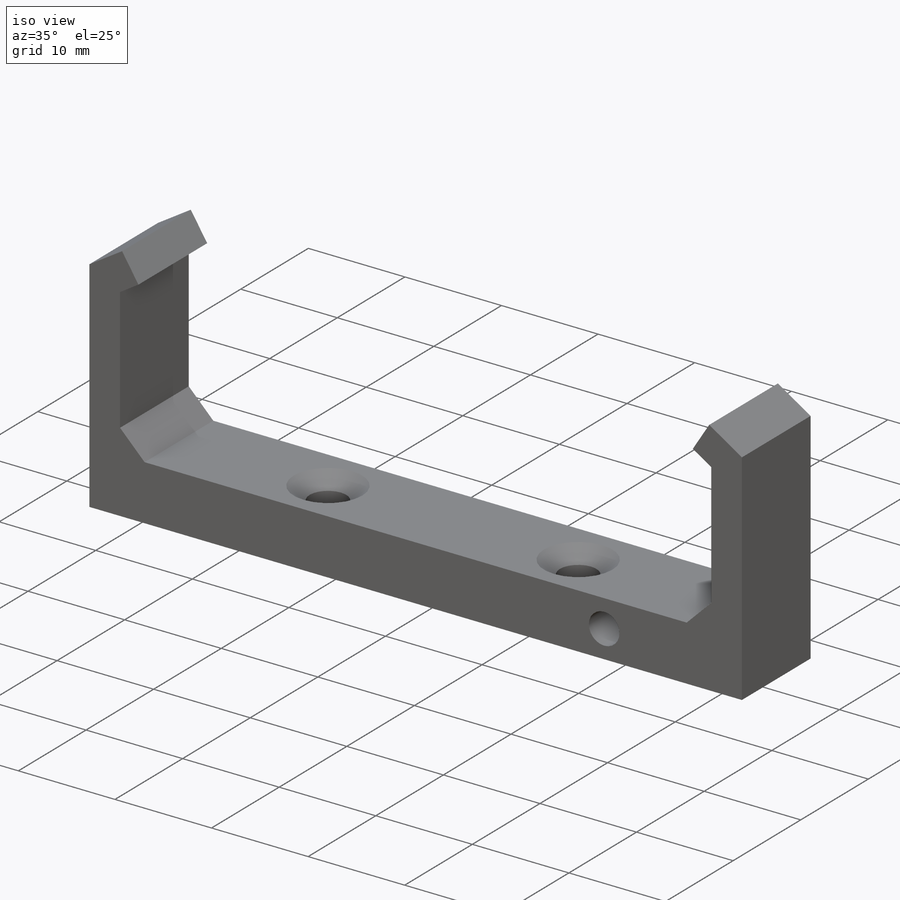
[diagram: iso view]
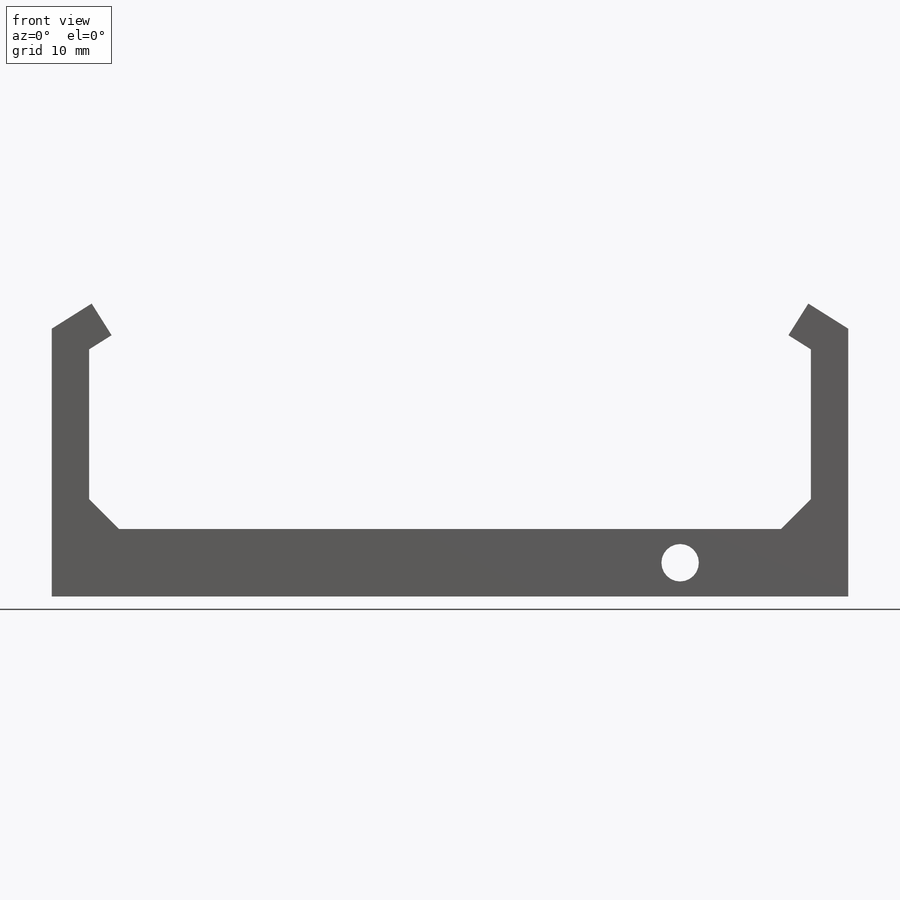
[diagram: front view]
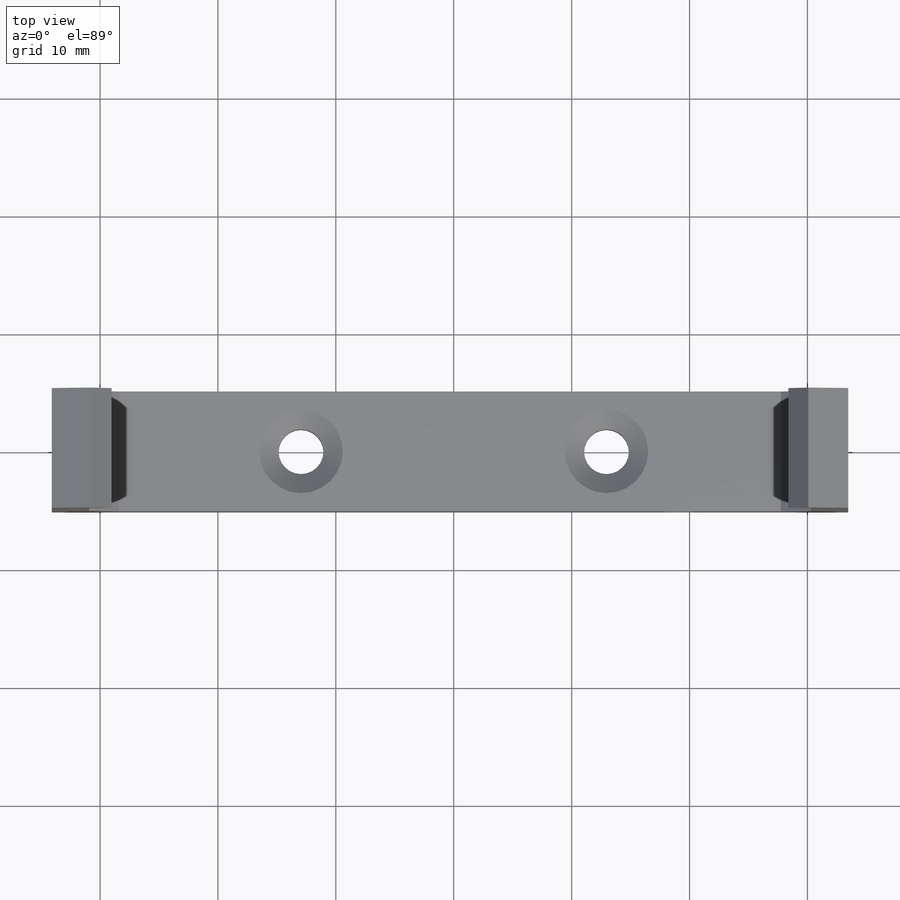
[diagram: top view]
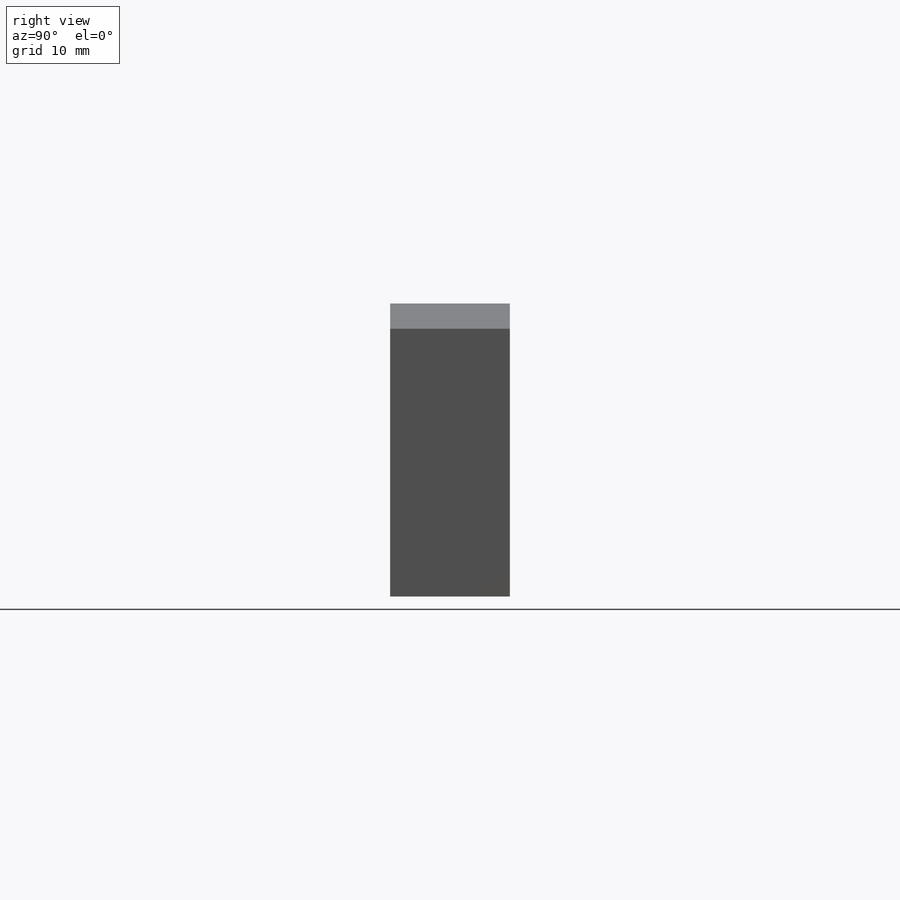
[diagram: right view]
SOLIDWORKS PART (.sldprt)
format: sldprt  version: not decoded by parser v0  size: 233,472 bytes
history: native  units: mm
features: sketch x6, extrude x2, cut_extrude x2, chamfer x2, material x1, hole x1, plane x1 (+11 scaffold rows collapsed)
feature tree (26):
  scaffold x11  (default folders/planes/origin — collapsed)
  material  "Material <not specified>"
  sketch  "Sketch1"  dims[c1.D1=58.039mm c1.D2=58.039mm c2.D2=~28.26171deg c3.D2=~14.670795mm c4.D2=~241.73829deg c5.D2=~14.670795mm c6.D2=~241.73829deg c7.D2=58.039mm c8.D2=45.0deg c8.D3=15.494mm c9.D2=58.039mm c10.D2=45.0deg c10.D3=~67.390226mm c10.D4=~30.520113mm c11.D3=~61.040226mm c11.D4=3.175mm c12.D3=~61.040226mm c12.D1=61.214mm c13.D3=58.42mm c13.D5=14.224mm c13.D6=14.224mm c14.D5=~2.251206mm c14.D6=15.24mm c14.D3=57.404mm c14.D2=3.175mm c15.D3=3.175mm]
  extrude  "Boss-Extrude1"  Depth=5.08mm
  sketch  "Sketch2"  dims[D4=~1.348642mm D1=33.782mm D2=16.891mm D3=16.891mm]
  cut_extrude  "Cut-Extrude1"  Depth=11.557mm
  chamfer  "Chamfer1"  Distance=2.54mm Angle=45deg
  chamfer  "Chamfer2"  Distance=2.54mm Angle=45deg
  hole  "CSK for #6 Flat Head Machine Screw (100)2"  Diameter=3.7973mm Depth=3.175mm
  sketch  "3DSketch2"
  sketch  "Sketch5"  dims[hole-wizard template sketch: 55 standard entries collapsed; hole parameters kept: c17.Thru Hole Depth=3.175mm c17.Near C'Sink Dia.=7.0866mm c17.D4=~3.666174mm c17.Near C'Sink Angle=100.0deg]
  plane  "Plane1"  Offset=0mm
  sketch  "Sketch6"
  extrude  "Boss-Extrude2"  Depth=2.54mm
  sketch  "Sketch7"  dims[D1=15.875mm]
  cut_extrude  "Cut-Extrude2"  [1 undecoded]
decode coverage: 10 of 13 modeling features carry decoded parameters
note: ~ marks probable driven/reference dimensions
note: 1 parameter value undecoded
note: suppression state not decoded; provenance and decode notes live in map.json
